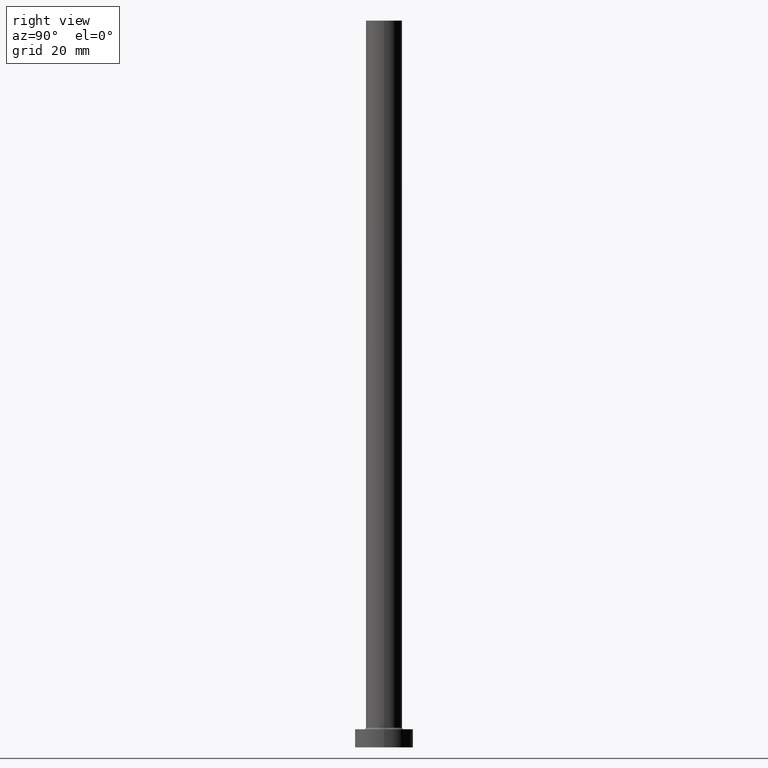
[diagram: clean part render]
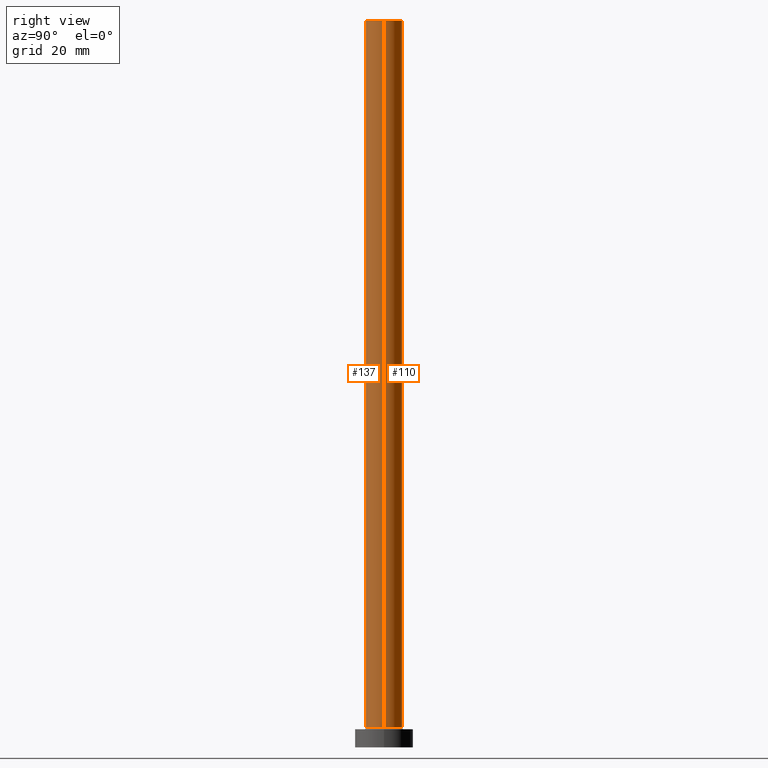
[diagram: same view with one multi-face feature highlighted, each face labeled with its STEP entity id]
A machine part, right view. The highlighted faces form ONE feature: a constant-radius fillet chain: 2 tangent blend faces with common blend radius 5 mm. The faces share edges in the B-rep.
Their STEP definitions:
[1] entity #137 (Cylinder):
#4 = VERTEX_POINT ( 'NONE', #419 ) ;
#34 = CARTESIAN_POINT ( 'NONE',  ( 5.000000000000000000, 6.123233995736766282E-16, 200.0000000000000000 ) ) ;
#54 = VERTEX_POINT ( 'NONE', #316 ) ;
#63 = ORIENTED_EDGE ( 'NONE', *, *, #70, .F. ) ;
#68 = CARTESIAN_POINT ( 'NONE',  ( 5.000000000000000000, 6.123233995736766282E-16, 5.500000000000005329 ) ) ;
#70 = EDGE_CURVE ( 'NONE', #99, #407, #390, .T. ) ;
#71 = CARTESIAN_POINT ( 'NONE',  ( 0.000000000000000000, 0.000000000000000000, 200.0000000000000000 ) ) ;
#82 = DIRECTION ( 'NONE',  ( 1.000000000000000000, 0.000000000000000000, 0.000000000000000000 ) ) ;
#87 = CARTESIAN_POINT ( 'NONE',  ( 0.000000000000000000, 0.000000000000000000, 5.500000000000005329 ) ) ;
#99 = VERTEX_POINT ( 'NONE', #148 ) ;
#104 = VECTOR ( 'NONE', #383, 1000.000000000000000 ) ;
#137 = ADVANCED_FACE ( 'NONE', ( #242 ), #385, .T. ) ;
#147 = EDGE_CURVE ( 'NONE', #4, #407, #214, .T. ) ;
#148 = CARTESIAN_POINT ( 'NONE',  ( 5.000000000000000000, 6.123233995736766282E-16, 200.0000000000000000 ) ) ;
#180 = ORIENTED_EDGE ( 'NONE', *, *, #308, .F. ) ;
#196 = AXIS2_PLACEMENT_3D ( 'NONE', #71, #209, #351 ) ;
#209 = DIRECTION ( 'NONE',  ( -0.000000000000000000, -0.000000000000000000, -1.000000000000000000 ) ) ;
#214 = CIRCLE ( 'NONE', #230, 5.000000000000000000 ) ;
#225 = CARTESIAN_POINT ( 'NONE',  ( 0.000000000000000000, 0.000000000000000000, 200.0000000000000000 ) ) ;
#230 = AXIS2_PLACEMENT_3D ( 'NONE', #87, #258, #376 ) ;
#233 = DIRECTION ( 'NONE',  ( 0.000000000000000000, 0.000000000000000000, 1.000000000000000000 ) ) ;
#240 = EDGE_LOOP ( 'NONE', ( #63, #180, #317, #455 ) ) ;
#241 = CARTESIAN_POINT ( 'NONE',  ( -5.000000000000000000, 0.000000000000000000, 200.0000000000000000 ) ) ;
#242 = FACE_OUTER_BOUND ( 'NONE', #240, .T. ) ;
#254 = AXIS2_PLACEMENT_3D ( 'NONE', #225, #233, #82 ) ;
#258 = DIRECTION ( 'NONE',  ( 0.000000000000000000, 0.000000000000000000, 1.000000000000000000 ) ) ;
#290 = DIRECTION ( 'NONE',  ( -0.000000000000000000, -0.000000000000000000, -1.000000000000000000 ) ) ;
#308 = EDGE_CURVE ( 'NONE', #54, #99, #356, .T. ) ;
#316 = CARTESIAN_POINT ( 'NONE',  ( -5.000000000000000000, 0.000000000000000000, 200.0000000000000000 ) ) ;
#317 = ORIENTED_EDGE ( 'NONE', *, *, #445, .T. ) ;
#351 = DIRECTION ( 'NONE',  ( -1.000000000000000000, 0.000000000000000000, 0.000000000000000000 ) ) ;
#356 = CIRCLE ( 'NONE', #254, 5.000000000000000000 ) ;
#376 = DIRECTION ( 'NONE',  ( 1.000000000000000000, 0.000000000000000000, 0.000000000000000000 ) ) ;
#383 = DIRECTION ( 'NONE',  ( -0.000000000000000000, -0.000000000000000000, -1.000000000000000000 ) ) ;
#385 = CYLINDRICAL_SURFACE ( 'NONE', #196, 5.000000000000000000 ) ;
#386 = VECTOR ( 'NONE', #290, 1000.000000000000000 ) ;
#390 = LINE ( 'NONE', #34, #386 ) ;
#407 = VERTEX_POINT ( 'NONE', #68 ) ;
#419 = CARTESIAN_POINT ( 'NONE',  ( -5.000000000000000000, 0.000000000000000000, 5.500000000000005329 ) ) ;
#422 = LINE ( 'NONE', #241, #104 ) ;
#445 = EDGE_CURVE ( 'NONE', #54, #4, #422, .T. ) ;
#455 = ORIENTED_EDGE ( 'NONE', *, *, #147, .T. ) ;
[2] entity #110 (Cylinder):
#2 = EDGE_CURVE ( 'NONE', #407, #4, #384, .T. ) ;
#3 = AXIS2_PLACEMENT_3D ( 'NONE', #393, #216, #281 ) ;
#4 = VERTEX_POINT ( 'NONE', #419 ) ;
#7 = ORIENTED_EDGE ( 'NONE', *, *, #2, .T. ) ;
#8 = FACE_OUTER_BOUND ( 'NONE', #49, .T. ) ;
#29 = ORIENTED_EDGE ( 'NONE', *, *, #445, .F. ) ;
#33 = DIRECTION ( 'NONE',  ( 1.000000000000000000, 0.000000000000000000, 0.000000000000000000 ) ) ;
#34 = CARTESIAN_POINT ( 'NONE',  ( 5.000000000000000000, 6.123233995736766282E-16, 200.0000000000000000 ) ) ;
#49 = EDGE_LOOP ( 'NONE', ( #320, #238, #7, #29 ) ) ;
#54 = VERTEX_POINT ( 'NONE', #316 ) ;
#68 = CARTESIAN_POINT ( 'NONE',  ( 5.000000000000000000, 6.123233995736766282E-16, 5.500000000000005329 ) ) ;
#70 = EDGE_CURVE ( 'NONE', #99, #407, #390, .T. ) ;
#99 = VERTEX_POINT ( 'NONE', #148 ) ;
#104 = VECTOR ( 'NONE', #383, 1000.000000000000000 ) ;
#110 = ADVANCED_FACE ( 'NONE', ( #8 ), #288, .T. ) ;
#126 = CIRCLE ( 'NONE', #404, 5.000000000000000000 ) ;
#134 = DIRECTION ( 'NONE',  ( 1.000000000000000000, 0.000000000000000000, 0.000000000000000000 ) ) ;
#148 = CARTESIAN_POINT ( 'NONE',  ( 5.000000000000000000, 6.123233995736766282E-16, 200.0000000000000000 ) ) ;
#174 = CARTESIAN_POINT ( 'NONE',  ( 0.000000000000000000, 0.000000000000000000, 200.0000000000000000 ) ) ;
#188 = AXIS2_PLACEMENT_3D ( 'NONE', #374, #201, #134 ) ;
#201 = DIRECTION ( 'NONE',  ( 0.000000000000000000, 0.000000000000000000, 1.000000000000000000 ) ) ;
#216 = DIRECTION ( 'NONE',  ( -0.000000000000000000, -0.000000000000000000, -1.000000000000000000 ) ) ;
#238 = ORIENTED_EDGE ( 'NONE', *, *, #70, .T. ) ;
#241 = CARTESIAN_POINT ( 'NONE',  ( -5.000000000000000000, 0.000000000000000000, 200.0000000000000000 ) ) ;
#274 = DIRECTION ( 'NONE',  ( 0.000000000000000000, 0.000000000000000000, 1.000000000000000000 ) ) ;
#281 = DIRECTION ( 'NONE',  ( -1.000000000000000000, 0.000000000000000000, 0.000000000000000000 ) ) ;
#288 = CYLINDRICAL_SURFACE ( 'NONE', #3, 5.000000000000000000 ) ;
#290 = DIRECTION ( 'NONE',  ( -0.000000000000000000, -0.000000000000000000, -1.000000000000000000 ) ) ;
#316 = CARTESIAN_POINT ( 'NONE',  ( -5.000000000000000000, 0.000000000000000000, 200.0000000000000000 ) ) ;
#320 = ORIENTED_EDGE ( 'NONE', *, *, #436, .F. ) ;
#374 = CARTESIAN_POINT ( 'NONE',  ( 0.000000000000000000, 0.000000000000000000, 5.500000000000005329 ) ) ;
#383 = DIRECTION ( 'NONE',  ( -0.000000000000000000, -0.000000000000000000, -1.000000000000000000 ) ) ;
#384 = CIRCLE ( 'NONE', #188, 5.000000000000000000 ) ;
#386 = VECTOR ( 'NONE', #290, 1000.000000000000000 ) ;
#390 = LINE ( 'NONE', #34, #386 ) ;
#393 = CARTESIAN_POINT ( 'NONE',  ( 0.000000000000000000, 0.000000000000000000, 200.0000000000000000 ) ) ;
#404 = AXIS2_PLACEMENT_3D ( 'NONE', #174, #274, #33 ) ;
#407 = VERTEX_POINT ( 'NONE', #68 ) ;
#419 = CARTESIAN_POINT ( 'NONE',  ( -5.000000000000000000, 0.000000000000000000, 5.500000000000005329 ) ) ;
#422 = LINE ( 'NONE', #241, #104 ) ;
#436 = EDGE_CURVE ( 'NONE', #99, #54, #126, .T. ) ;
#445 = EDGE_CURVE ( 'NONE', #54, #4, #422, .T. ) ;